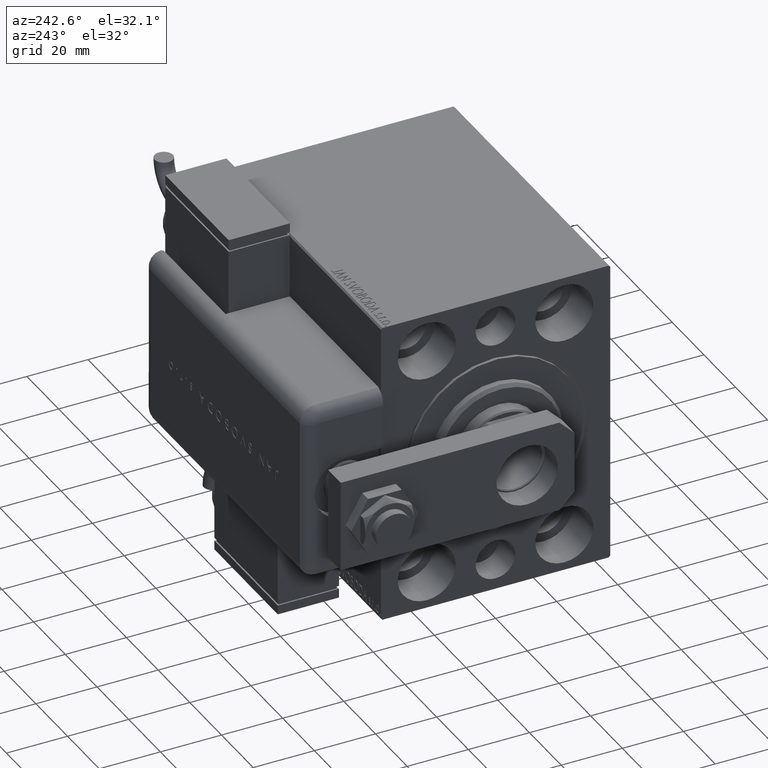
[diagram: clean part render]
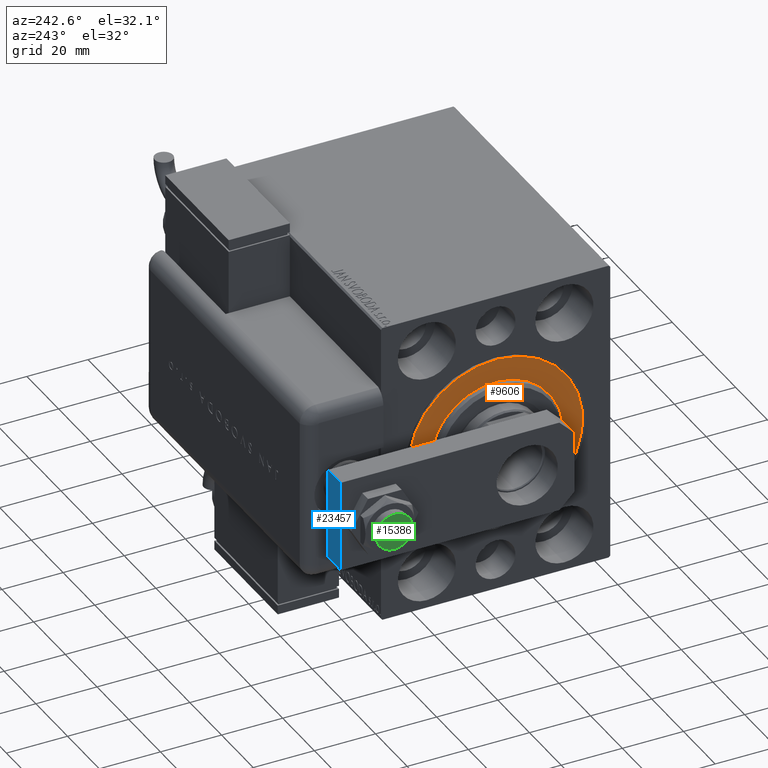
[diagram: same view with three faces highlighted in distinct colors, each labeled with its STEP entity id]
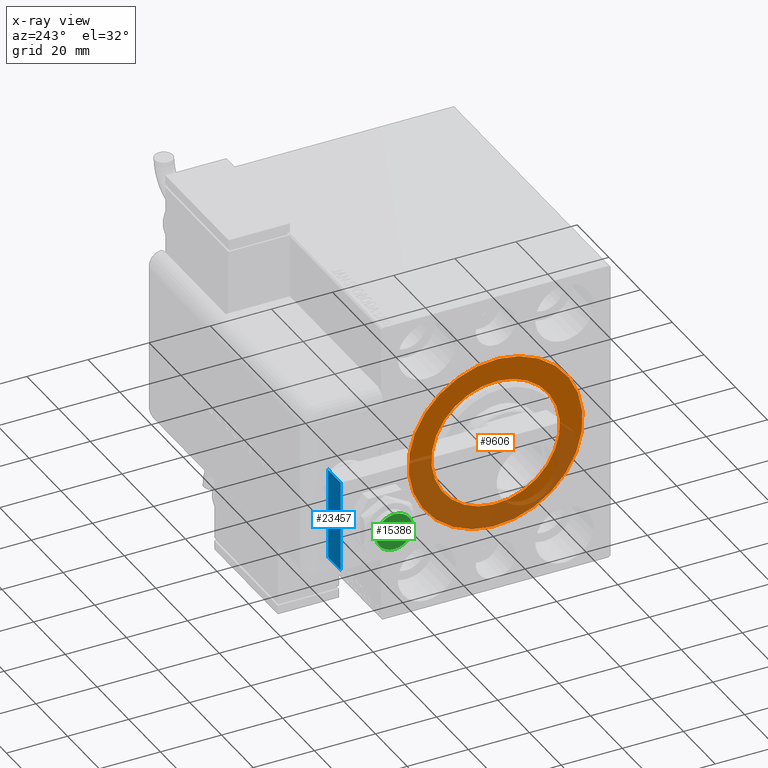
[diagram: x-ray of the same camera — body ghosted, the three highlighted faces saturated]
A machine part, auxiliary view with three faces highlighted in distinct colors.
The next image is the same camera in x-ray (body ghosted, the three faces saturated) — at least one of them is partly hidden behind the body in this view.
Their STEP definitions:

[orange] entity #9606 — the highlighted planar face has unit normal (1, 0, -0).
#100 = EDGE_LOOP ( 'NONE', ( #11337, #28497 ) ) ;
#496 = VERTEX_POINT ( 'NONE', #43085 ) ;
#2391 = FACE_BOUND ( 'NONE', #32707, .T. ) ;
#4328 = CIRCLE ( 'NONE', #55327, 28.50000000000000000 ) ;
#6918 = CARTESIAN_POINT ( 'NONE',  ( 0.000000000000000000, 0.000000000000000000, 0.000000000000000000 ) ) ;
#7922 = EDGE_CURVE ( 'NONE', #24740, #33362, #23989, .T. ) ;
#9250 = CIRCLE ( 'NONE', #23713, 28.50000000000000000 ) ;
#9606 = ADVANCED_FACE ( 'NONE', ( #2391, #28929 ), #47314, .F. ) ;
#10533 = CARTESIAN_POINT ( 'NONE',  ( 0.000000000000000000, 0.000000000000000000, 0.000000000000000000 ) ) ;
#11337 = ORIENTED_EDGE ( 'NONE', *, *, #30265, .F. ) ;
#13215 = CARTESIAN_POINT ( 'NONE',  ( 0.000000000000000000, 0.000000000000000000, 21.00000000000000000 ) ) ;
#14001 = CARTESIAN_POINT ( 'NONE',  ( 0.000000000000000000, 0.000000000000000000, 0.000000000000000000 ) ) ;
#14290 = DIRECTION ( 'NONE',  ( 1.000000000000000000, -0.000000000000000000, 0.000000000000000000 ) ) ;
#15640 = DIRECTION ( 'NONE',  ( 0.000000000000000000, 0.000000000000000000, -1.000000000000000000 ) ) ;
#19531 = DIRECTION ( 'NONE',  ( -1.000000000000000000, 0.000000000000000000, 0.000000000000000000 ) ) ;
#19707 = DIRECTION ( 'NONE',  ( 0.000000000000000000, 0.000000000000000000, -1.000000000000000000 ) ) ;
#20183 = AXIS2_PLACEMENT_3D ( 'NONE', #6918, #38258, #24693 ) ;
#22016 = EDGE_CURVE ( 'NONE', #33362, #24740, #54182, .T. ) ;
#23713 = AXIS2_PLACEMENT_3D ( 'NONE', #24411, #28650, #41623 ) ;
#23989 = CIRCLE ( 'NONE', #24930, 21.00000000000000000 ) ;
#24411 = CARTESIAN_POINT ( 'NONE',  ( 0.000000000000000000, 0.000000000000000000, 0.000000000000000000 ) ) ;
#24693 = DIRECTION ( 'NONE',  ( 0.000000000000000000, 0.000000000000000000, 1.000000000000000000 ) ) ;
#24740 = VERTEX_POINT ( 'NONE', #13215 ) ;
#24930 = AXIS2_PLACEMENT_3D ( 'NONE', #14001, #14290, #19707 ) ;
#26054 = EDGE_CURVE ( 'NONE', #31436, #496, #4328, .T. ) ;
#28497 = ORIENTED_EDGE ( 'NONE', *, *, #26054, .F. ) ;
#28650 = DIRECTION ( 'NONE',  ( -1.000000000000000000, 0.000000000000000000, 0.000000000000000000 ) ) ;
#28929 = FACE_OUTER_BOUND ( 'NONE', #100, .T. ) ;
#30265 = EDGE_CURVE ( 'NONE', #496, #31436, #9250, .T. ) ;
#31436 = VERTEX_POINT ( 'NONE', #43278 ) ;
#32707 = EDGE_LOOP ( 'NONE', ( #40326, #50847 ) ) ;
#33362 = VERTEX_POINT ( 'NONE', #42674 ) ;
#35943 = CARTESIAN_POINT ( 'NONE',  ( 0.000000000000000000, 0.000000000000000000, 0.000000000000000000 ) ) ;
#38258 = DIRECTION ( 'NONE',  ( -1.000000000000000000, 0.000000000000000000, 0.000000000000000000 ) ) ;
#39792 = AXIS2_PLACEMENT_3D ( 'NONE', #10533, #41907, #15640 ) ;
#40326 = ORIENTED_EDGE ( 'NONE', *, *, #7922, .F. ) ;
#41623 = DIRECTION ( 'NONE',  ( 0.000000000000000000, 0.000000000000000000, 1.000000000000000000 ) ) ;
#41907 = DIRECTION ( 'NONE',  ( 1.000000000000000000, -0.000000000000000000, 0.000000000000000000 ) ) ;
#42674 = CARTESIAN_POINT ( 'NONE',  ( 0.000000000000000000, 2.571758278209441661E-15, -21.00000000000000000 ) ) ;
#43085 = CARTESIAN_POINT ( 'NONE',  ( 0.000000000000000000, 0.000000000000000000, -28.50000000000000000 ) ) ;
#43278 = CARTESIAN_POINT ( 'NONE',  ( 0.000000000000000000, 3.490243377569956456E-15, 28.50000000000000000 ) ) ;
#47314 = PLANE ( 'NONE',  #20183 ) ;
#49812 = DIRECTION ( 'NONE',  ( 0.000000000000000000, 0.000000000000000000, 1.000000000000000000 ) ) ;
#50847 = ORIENTED_EDGE ( 'NONE', *, *, #22016, .F. ) ;
#54182 = CIRCLE ( 'NONE', #39792, 21.00000000000000000 ) ;
#55327 = AXIS2_PLACEMENT_3D ( 'NONE', #35943, #19531, #49812 ) ;

[blue] entity #23457 — the highlighted planar face has unit normal (0, -1, -0).
#3468 = CARTESIAN_POINT ( 'NONE',  ( 15.00000000000000355, 76.50000000000000000, 0.000000000000000000 ) ) ;
#3739 = ORIENTED_EDGE ( 'NONE', *, *, #47340, .T. ) ;
#4045 = CARTESIAN_POINT ( 'NONE',  ( -14.99999999999999822, 76.50000000000000000, 8.000000000000000000 ) ) ;
#6476 = CARTESIAN_POINT ( 'NONE',  ( 15.00000000000000355, 76.50000000000000000, 0.000000000000000000 ) ) ;
#10192 = ORIENTED_EDGE ( 'NONE', *, *, #35482, .T. ) ;
#10990 = VERTEX_POINT ( 'NONE', #3468 ) ;
#13554 = VECTOR ( 'NONE', #48985, 1000.000000000000000 ) ;
#14701 = LINE ( 'NONE', #33104, #42149 ) ;
#16482 = LINE ( 'NONE', #34881, #42678 ) ;
#16613 = CARTESIAN_POINT ( 'NONE',  ( 15.00000000000000355, 76.50000000000000000, 8.000000000000000000 ) ) ;
#18077 = VECTOR ( 'NONE', #56658, 1000.000000000000000 ) ;
#18285 = CARTESIAN_POINT ( 'NONE',  ( 15.00000000000000355, 76.50000000000000000, 8.000000000000000000 ) ) ;
#23248 = ORIENTED_EDGE ( 'NONE', *, *, #58012, .F. ) ;
#23457 = ADVANCED_FACE ( 'NONE', ( #30200 ), #39825, .F. ) ;
#25401 = AXIS2_PLACEMENT_3D ( 'NONE', #16613, #58190, #48575 ) ;
#28909 = CARTESIAN_POINT ( 'NONE',  ( -14.99999999999999822, 76.50000000000000000, 0.000000000000000000 ) ) ;
#30200 = FACE_OUTER_BOUND ( 'NONE', #49268, .T. ) ;
#33104 = CARTESIAN_POINT ( 'NONE',  ( 15.00000000000000355, 76.50000000000000000, 8.000000000000000000 ) ) ;
#33767 = CARTESIAN_POINT ( 'NONE',  ( 15.00000000000000355, 76.50000000000000000, 8.000000000000000000 ) ) ;
#34739 = VERTEX_POINT ( 'NONE', #4045 ) ;
#34881 = CARTESIAN_POINT ( 'NONE',  ( -14.99999999999999822, 76.50000000000000000, 8.000000000000000000 ) ) ;
#35482 = EDGE_CURVE ( 'NONE', #42977, #10990, #14701, .T. ) ;
#36032 = EDGE_CURVE ( 'NONE', #42977, #34739, #52146, .T. ) ;
#37317 = DIRECTION ( 'NONE',  ( -0.000000000000000000, -0.000000000000000000, -1.000000000000000000 ) ) ;
#39825 = PLANE ( 'NONE',  #25401 ) ;
#39931 = LINE ( 'NONE', #6476, #13554 ) ;
#42149 = VECTOR ( 'NONE', #37317, 1000.000000000000000 ) ;
#42678 = VECTOR ( 'NONE', #53262, 1000.000000000000000 ) ;
#42935 = ORIENTED_EDGE ( 'NONE', *, *, #36032, .F. ) ;
#42977 = VERTEX_POINT ( 'NONE', #18285 ) ;
#47340 = EDGE_CURVE ( 'NONE', #10990, #55356, #39931, .T. ) ;
#48575 = DIRECTION ( 'NONE',  ( 0.000000000000000000, -0.000000000000000000, -1.000000000000000000 ) ) ;
#48985 = DIRECTION ( 'NONE',  ( -1.000000000000000000, 0.000000000000000000, 0.000000000000000000 ) ) ;
#49268 = EDGE_LOOP ( 'NONE', ( #3739, #23248, #42935, #10192 ) ) ;
#52146 = LINE ( 'NONE', #33767, #18077 ) ;
#53262 = DIRECTION ( 'NONE',  ( -0.000000000000000000, -0.000000000000000000, -1.000000000000000000 ) ) ;
#55356 = VERTEX_POINT ( 'NONE', #28909 ) ;
#56658 = DIRECTION ( 'NONE',  ( -1.000000000000000000, 0.000000000000000000, 0.000000000000000000 ) ) ;
#58012 = EDGE_CURVE ( 'NONE', #34739, #55356, #16482, .T. ) ;
#58190 = DIRECTION ( 'NONE',  ( 0.000000000000000000, -1.000000000000000000, 0.000000000000000000 ) ) ;

[green] entity #15386 — the highlighted planar face has unit normal (-1, 0, 0).
#2114 = DIRECTION ( 'NONE',  ( 0.000000000000000000, 0.000000000000000000, -1.000000000000000000 ) ) ;
#5444 = AXIS2_PLACEMENT_3D ( 'NONE', #46399, #16132, #32527 ) ;
#11450 = CARTESIAN_POINT ( 'NONE',  ( 0.000000000000000000, 0.000000000000000000, -28.00000000000000000 ) ) ;
#15386 = ADVANCED_FACE ( 'NONE', ( #38873 ), #44628, .T. ) ;
#16132 = DIRECTION ( 'NONE',  ( 0.000000000000000000, 0.000000000000000000, -1.000000000000000000 ) ) ;
#17777 = DIRECTION ( 'NONE',  ( 0.000000000000000000, 0.000000000000000000, -1.000000000000000000 ) ) ;
#18124 = CARTESIAN_POINT ( 'NONE',  ( 6.000000000000000888, 0.000000000000000000, -28.00000000000000000 ) ) ;
#23847 = VERTEX_POINT ( 'NONE', #40043 ) ;
#26055 = VERTEX_POINT ( 'NONE', #18124 ) ;
#27530 = ORIENTED_EDGE ( 'NONE', *, *, #36976, .T. ) ;
#32443 = EDGE_LOOP ( 'NONE', ( #58079, #27530 ) ) ;
#32527 = DIRECTION ( 'NONE',  ( -1.000000000000000000, 0.000000000000000000, 0.000000000000000000 ) ) ;
#36295 = CIRCLE ( 'NONE', #41106, 6.000000000000000888 ) ;
#36976 = EDGE_CURVE ( 'NONE', #23847, #26055, #49776, .T. ) ;
#37047 = CARTESIAN_POINT ( 'NONE',  ( 0.000000000000000000, 0.000000000000000000, -28.00000000000000000 ) ) ;
#37782 = EDGE_CURVE ( 'NONE', #26055, #23847, #36295, .T. ) ;
#38873 = FACE_OUTER_BOUND ( 'NONE', #32443, .T. ) ;
#40043 = CARTESIAN_POINT ( 'NONE',  ( -6.000000000000000888, 7.347880794884120722E-16, -28.00000000000000000 ) ) ;
#41106 = AXIS2_PLACEMENT_3D ( 'NONE', #37047, #17777, #55134 ) ;
#44628 = PLANE ( 'NONE',  #56029 ) ;
#46399 = CARTESIAN_POINT ( 'NONE',  ( 0.000000000000000000, 0.000000000000000000, -28.00000000000000000 ) ) ;
#49776 = CIRCLE ( 'NONE', #5444, 6.000000000000000888 ) ;
#55134 = DIRECTION ( 'NONE',  ( -1.000000000000000000, 0.000000000000000000, 0.000000000000000000 ) ) ;
#56029 = AXIS2_PLACEMENT_3D ( 'NONE', #11450, #2114, #57254 ) ;
#57254 = DIRECTION ( 'NONE',  ( -1.000000000000000000, 0.000000000000000000, -0.000000000000000000 ) ) ;
#58079 = ORIENTED_EDGE ( 'NONE', *, *, #37782, .T. ) ;